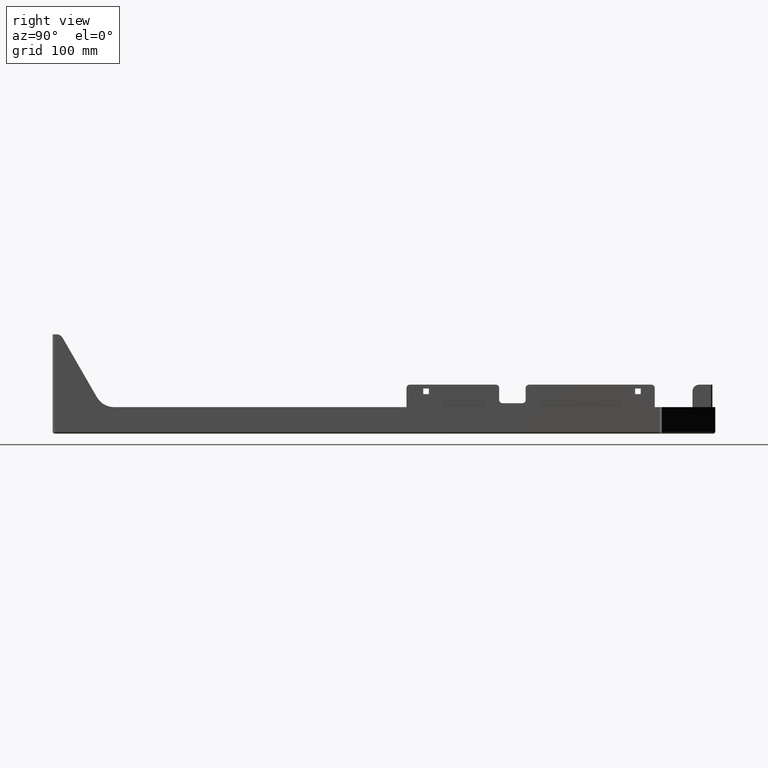
[diagram: clean part render]
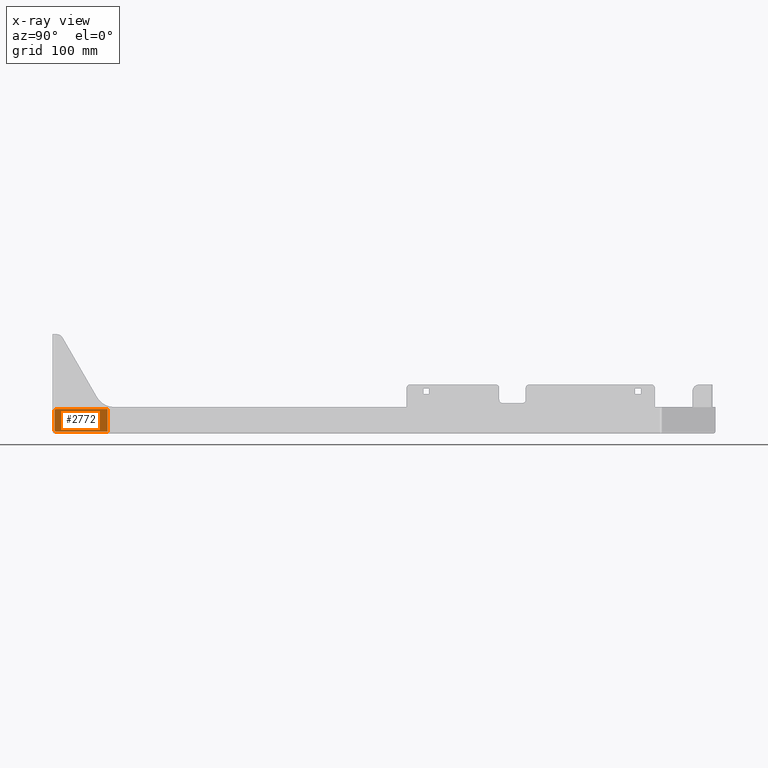
[diagram: x-ray — body ghosted, one internal face saturated and labeled with its STEP entity id]
A machine part, right view, then the same camera in x-ray: the body is ghosted and one INTERNAL B-rep face — a face not visible from any outside direction — is saturated and labeled: STEP entity #2772.
In plain terms, the highlighted planar face has unit normal (-1, 0, -0).
Its self-contained STEP definition (entity closure, byte-faithful):
#1466 = EDGE_CURVE ( 'NONE', #1492, #1515, #6961, .T. ) ;
#1492 = VERTEX_POINT ( 'NONE', #6922 ) ;
#1515 = VERTEX_POINT ( 'NONE', #3168 ) ;
#2682 = EDGE_CURVE ( 'NONE', #2761, #2683, #6422, .T. ) ;
#2683 = VERTEX_POINT ( 'NONE', #6430 ) ;
#2694 = VERTEX_POINT ( 'NONE', #6431 ) ;
#2699 = EDGE_CURVE ( 'NONE', #2694, #2683, #6416, .T. ) ;
#2700 = ORIENTED_EDGE ( 'NONE', *, *, #2682, .F. ) ;
#2705 = ORIENTED_EDGE ( 'NONE', *, *, #2699, .T. ) ;
#2711 = EDGE_CURVE ( 'NONE', #2694, #2793, #6318, .T. ) ;
#2761 = VERTEX_POINT ( 'NONE', #6598 ) ;
#2772 = ADVANCED_FACE ( 'NONE', ( #6501 ), #6547, .F. ) ;
#2773 = EDGE_CURVE ( 'NONE', #1492, #2761, #6487, .T. ) ;
#2793 = VERTEX_POINT ( 'NONE', #6721 ) ;
#2797 = EDGE_CURVE ( 'NONE', #1515, #2793, #6831, .T. ) ;
#2798 = ORIENTED_EDGE ( 'NONE', *, *, #2773, .F. ) ;
#2799 = EDGE_LOOP ( 'NONE', ( #2798, #2840, #2850, #2849, #2705, #2700 ) ) ;
#2840 = ORIENTED_EDGE ( 'NONE', *, *, #1466, .T. ) ;
#2849 = ORIENTED_EDGE ( 'NONE', *, *, #2711, .F. ) ;
#2850 = ORIENTED_EDGE ( 'NONE', *, *, #2797, .T. ) ;
#3168 = CARTESIAN_POINT ( 'NONE',  ( -164.4999999999998000, 4.999999999999560400, 36.99999999999966600 ) ) ;
#6316 = VECTOR ( 'NONE', #6444, 1000.000000000000000 ) ;
#6317 = CARTESIAN_POINT ( 'NONE',  ( -164.4999999999998900, 2.999999999999988900, 2.999999999999874300 ) ) ;
#6318 = LINE ( 'NONE', #6317, #6316 ) ;
#6370 = DIRECTION ( 'NONE',  ( -7.566798039541408700E-017, -1.000000000000000000, -7.562310153086392200E-017 ) ) ;
#6371 = VECTOR ( 'NONE', #6370, 1000.000000000000000 ) ;
#6372 = CARTESIAN_POINT ( 'NONE',  ( -164.4999999999997700, 85.99999999999990100, 3.000000000000217600 ) ) ;
#6412 = DIRECTION ( 'NONE',  ( 0.0000000000000000000, 1.000000000000000000, 0.0000000000000000000 ) ) ;
#6413 = DIRECTION ( 'NONE',  ( 1.000000000000000000, -2.855695209886079400E-016, 2.220446049250314100E-016 ) ) ;
#6414 = CARTESIAN_POINT ( 'NONE',  ( -164.4999999999998600, 4.999999999999990200, 4.999999999999875700 ) ) ;
#6415 = AXIS2_PLACEMENT_3D ( 'NONE', #6414, #6413, #6412 ) ;
#6416 = CIRCLE ( 'NONE', #6415, 1.999999999999999100 ) ;
#6422 = LINE ( 'NONE', #6372, #6371 ) ;
#6430 = CARTESIAN_POINT ( 'NONE',  ( -164.4999999999998900, 4.999999999999824100, 3.000000000000027100 ) ) ;
#6431 = CARTESIAN_POINT ( 'NONE',  ( -164.4999999999998600, 3.000000000000044400, 4.999999999999986700 ) ) ;
#6444 = DIRECTION ( 'NONE',  ( -2.837153801010207900E-032, -5.032324383591473800E-016, 1.000000000000000000 ) ) ;
#6484 = DIRECTION ( 'NONE',  ( 2.837153801010207900E-032, 5.032324383591473800E-016, -1.000000000000000000 ) ) ;
#6485 = VECTOR ( 'NONE', #6484, 1000.000000000000000 ) ;
#6486 = CARTESIAN_POINT ( 'NONE',  ( -164.4999999999998600, 82.89999999999967900, 37.00000000000012100 ) ) ;
#6487 = LINE ( 'NONE', #6486, #6485 ) ;
#6490 = DIRECTION ( 'NONE',  ( 7.566798039541408700E-017, 1.000000000000000000, 7.562310153086392200E-017 ) ) ;
#6491 = DIRECTION ( 'NONE',  ( -1.000000000000000000, 7.566798039541409900E-017, -2.220446049250314600E-016 ) ) ;
#6492 = CARTESIAN_POINT ( 'NONE',  ( -164.4999999999997700, 85.99999999999990100, 3.000000000000217600 ) ) ;
#6501 = FACE_OUTER_BOUND ( 'NONE', #2799, .T. ) ;
#6517 = AXIS2_PLACEMENT_3D ( 'NONE', #6492, #6491, #6490 ) ;
#6547 = PLANE ( 'NONE',  #6517 ) ;
#6598 = CARTESIAN_POINT ( 'NONE',  ( -164.4999999999999100, 82.90000000000002000, 3.000000000000079000 ) ) ;
#6721 = CARTESIAN_POINT ( 'NONE',  ( -164.5000000000000000, 2.999999999999988900, 35.00000000000027000 ) ) ;
#6724 = AXIS2_PLACEMENT_3D ( 'NONE', #6736, #6830, #6829 ) ;
#6736 = CARTESIAN_POINT ( 'NONE',  ( -164.4999999999999400, 4.999999999999768200, 35.00000000000027000 ) ) ;
#6829 = DIRECTION ( 'NONE',  ( 0.0000000000000000000, 1.000000000000000000, 0.0000000000000000000 ) ) ;
#6830 = DIRECTION ( 'NONE',  ( 1.000000000000000000, -2.855695209886079400E-016, 2.220446049250314100E-016 ) ) ;
#6831 = CIRCLE ( 'NONE', #6724, 1.999999999999999100 ) ;
#6922 = CARTESIAN_POINT ( 'NONE',  ( -164.4999999999999100, 82.89999999999967900, 36.99999999999967300 ) ) ;
#6955 = DIRECTION ( 'NONE',  ( -7.566798039541408700E-017, -1.000000000000000000, -7.562310153086392200E-017 ) ) ;
#6956 = VECTOR ( 'NONE', #6955, 1000.000000000000000 ) ;
#6957 = CARTESIAN_POINT ( 'NONE',  ( -164.4999999999998600, 85.99999999999984400, 37.00000000000005000 ) ) ;
#6961 = LINE ( 'NONE', #6957, #6956 ) ;